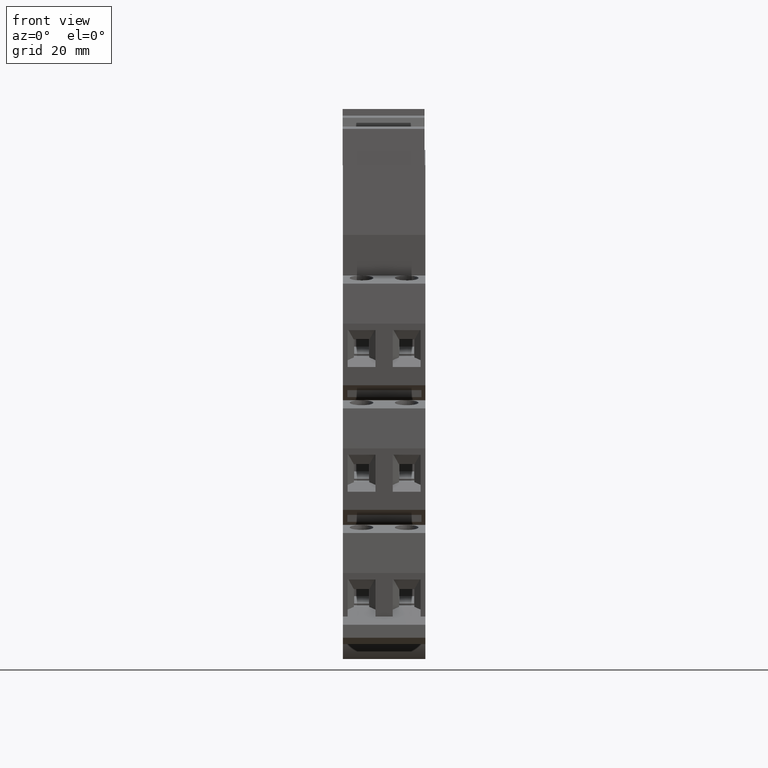
[diagram: clean part render]
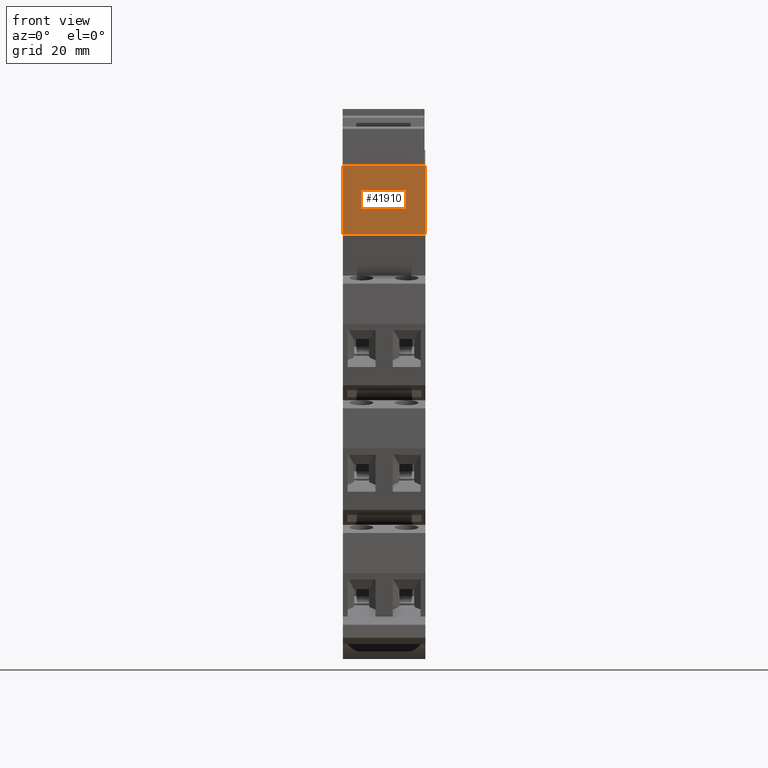
[diagram: same view with one face highlighted and labeled with its STEP entity id]
A machine part, front view. The second image highlights one B-rep face of the part: STEP entity #41910.
In plain terms, the highlighted planar face has unit normal (0, 1, 0).
Its self-contained STEP definition (entity closure, byte-faithful):
#1720=CARTESIAN_POINT('',(22.3071599998152,62.4210968235966,
-14.7000000000049));
#1730=VERTEX_POINT('',#1720);
#1760=CARTESIAN_POINT('',(22.3071599999991,51.1058216480293,
-14.7000000000029));
#1770=DIRECTION('',(6.25650888248224E-14,1.,-3.81404366214674E-28));
#1780=VECTOR('',#1770,1.);
#1790=LINE('',#1760,#1780);
#1800=CARTESIAN_POINT('',(22.3071600000005,74.1500000000194,
-14.7000000000029));
#1810=VERTEX_POINT('',#1800);
#1820=EDGE_CURVE('',#1730,#1810,#1790,.T.);
#6540=CARTESIAN_POINT('',(22.3071599999996,74.1500000000194,
-0.800000000002909));
#6550=VERTEX_POINT('',#6540);
#6580=CARTESIAN_POINT('',(22.3071599999982,51.1058216480293,
-0.800000000002909));
#6590=DIRECTION('',(6.25650888248224E-14,1.,-3.81404366214674E-28));
#6600=VECTOR('',#6590,1.);
#6610=LINE('',#6580,#6600);
#6620=CARTESIAN_POINT('',(22.3071599999989,62.4210968244649,
-0.800000000003014));
#6630=VERTEX_POINT('',#6620);
#6640=EDGE_CURVE('',#6630,#6550,#6610,.T.);
#14640=CARTESIAN_POINT('',(22.3071599998067,74.150000000038,
-0.800000000002907));
#14650=DIRECTION('',(-1.89326617253043E-28,-3.80420625981057E-28,-1.));
#14660=VECTOR('',#14650,1.);
#14670=LINE('',#14640,#14660);
#14680=EDGE_CURVE('',#6550,#1810,#14670,.T.);
#41620=CARTESIAN_POINT('',(22.3071599999989,62.421096824465,
-0.800000000002907));
#41630=DIRECTION('',(6.27941947176639E-14,2.95423459168863E-13,-1.));
#41640=VECTOR('',#41630,1.);
#41650=LINE('',#41620,#41640);
#41660=EDGE_CURVE('',#6630,#1730,#41650,.T.);
#41800=CARTESIAN_POINT('',(22.3071599999998,62.421096824465,
-14.700000000002));
#41810=DIRECTION('',(-1.,6.25650888248224E-14,-6.27941947176454E-14));
#41820=DIRECTION('',(-6.25650888248224E-14,-1.,1.79455974478095E-28));
#41830=AXIS2_PLACEMENT_3D('',#41800,#41810,#41820);
#41840=PLANE('',#41830);
#41850=ORIENTED_EDGE('',*,*,#14680,.F.);
#41860=ORIENTED_EDGE('',*,*,#1820,.T.);
#41870=ORIENTED_EDGE('',*,*,#41660,.T.);
#41880=ORIENTED_EDGE('',*,*,#6640,.F.);
#41890=EDGE_LOOP('',(#41880,#41870,#41860,#41850));
#41900=FACE_OUTER_BOUND('',#41890,.T.);
#41910=ADVANCED_FACE('',(#41900),#41840,.F.);